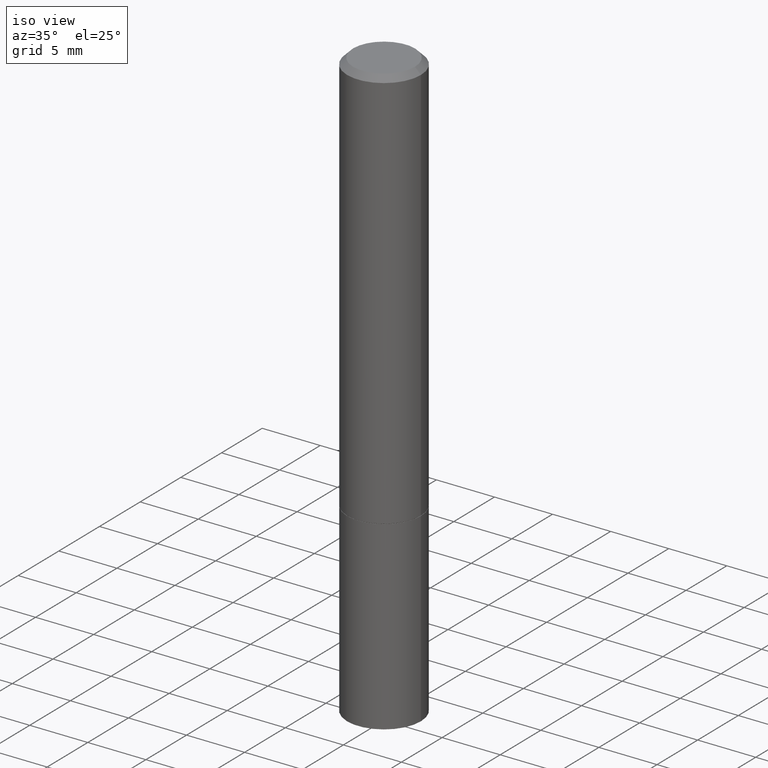
[diagram: clean part render]
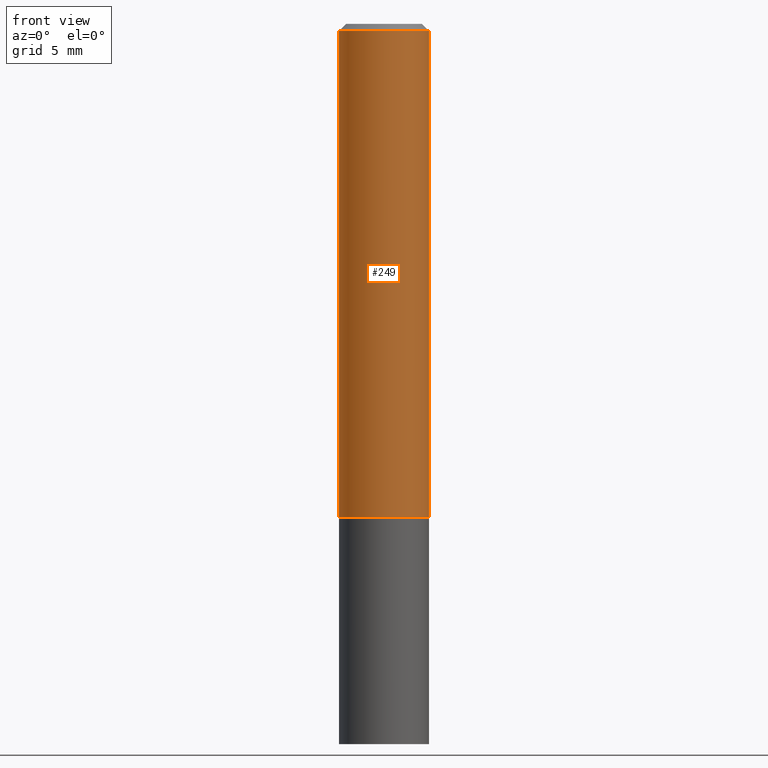
[diagram: tour spotlight — one face highlighted and labeled with its STEP entity id]
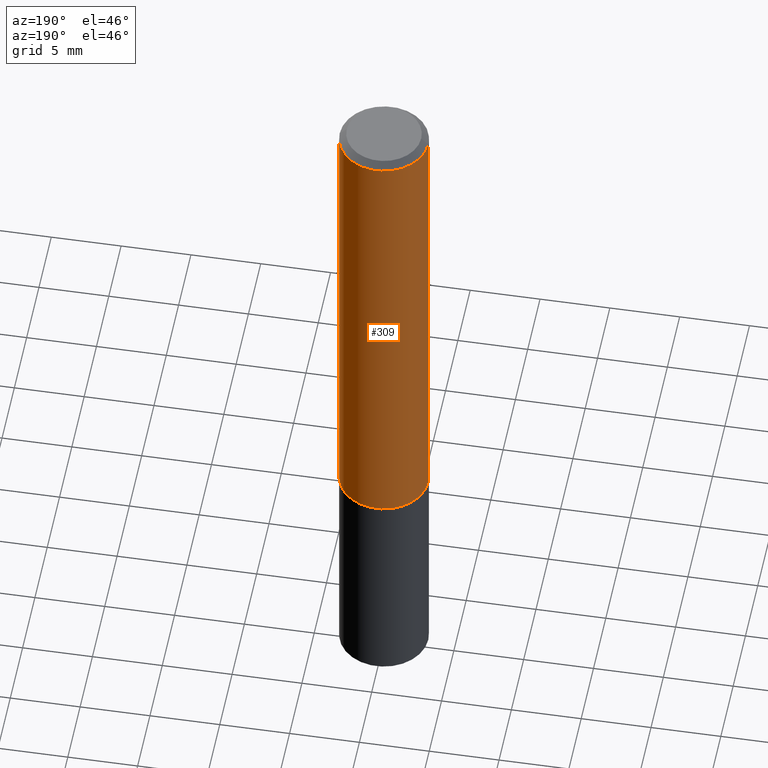
[diagram: tour spotlight — one face highlighted and labeled with its STEP entity id]
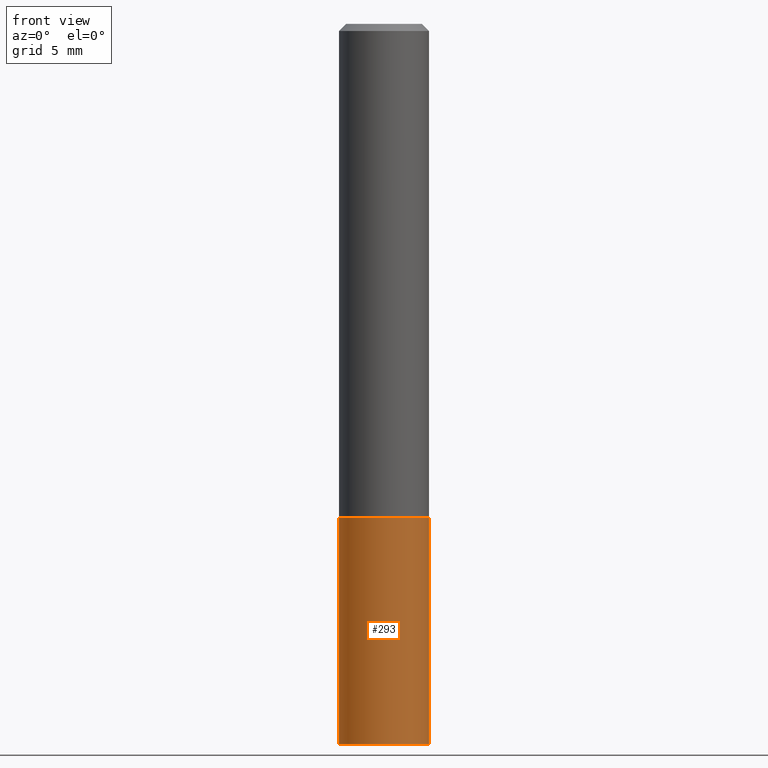
[diagram: tour spotlight — one face highlighted and labeled with its STEP entity id]
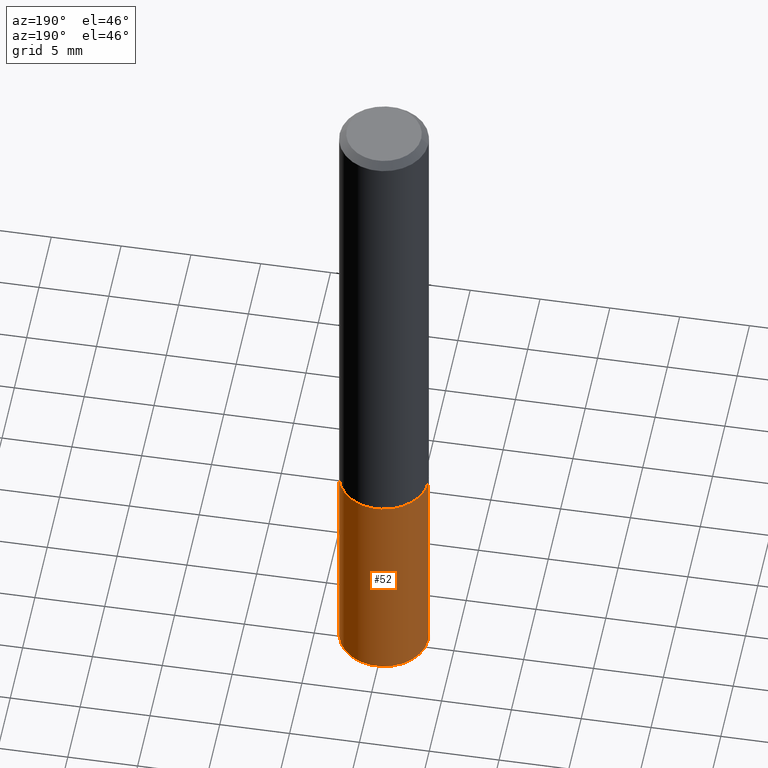
[diagram: tour spotlight — one face highlighted and labeled with its STEP entity id]
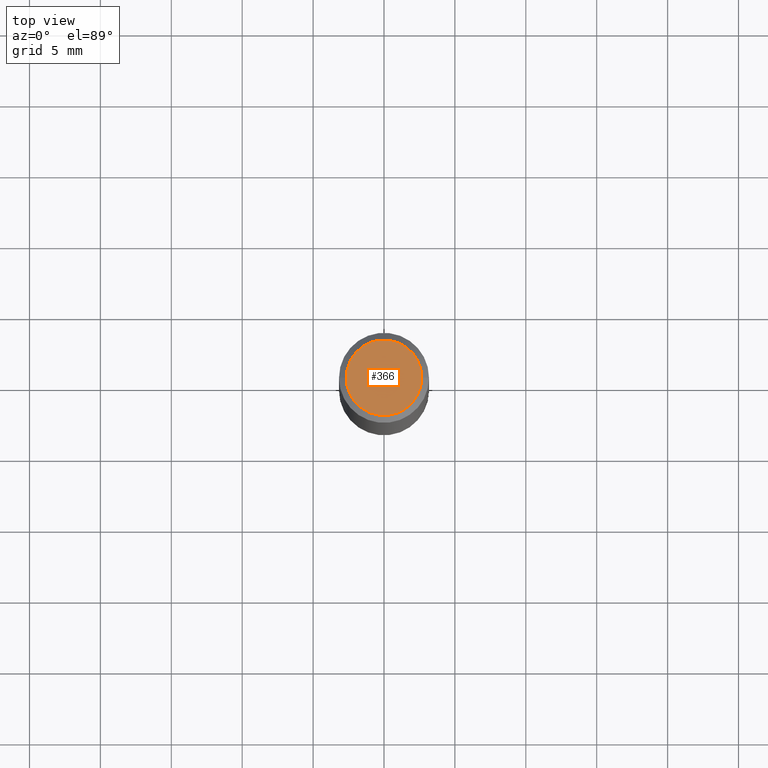
[diagram: tour spotlight — one face highlighted and labeled with its STEP entity id]
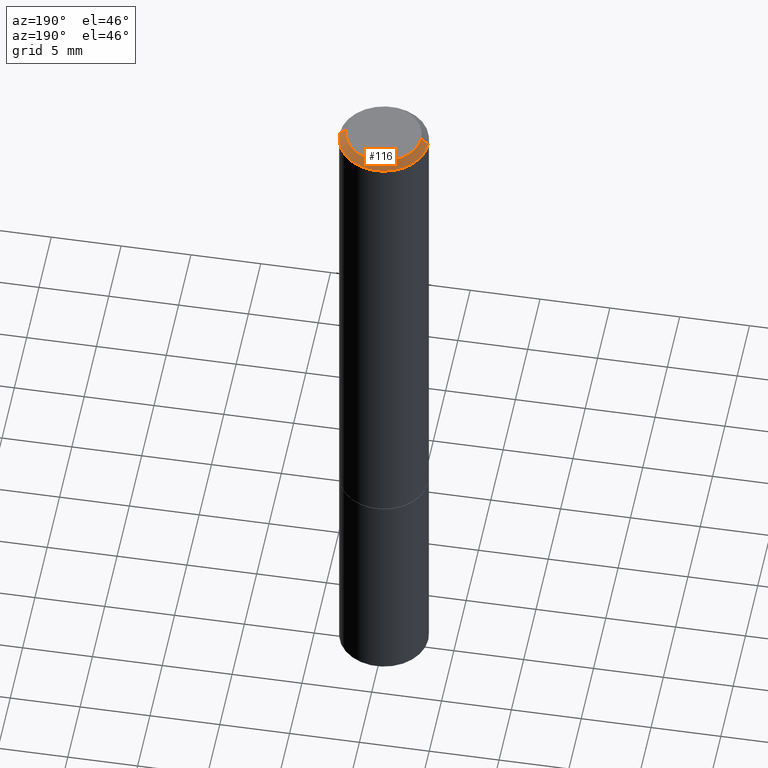
[diagram: tour spotlight — one face highlighted and labeled with its STEP entity id]
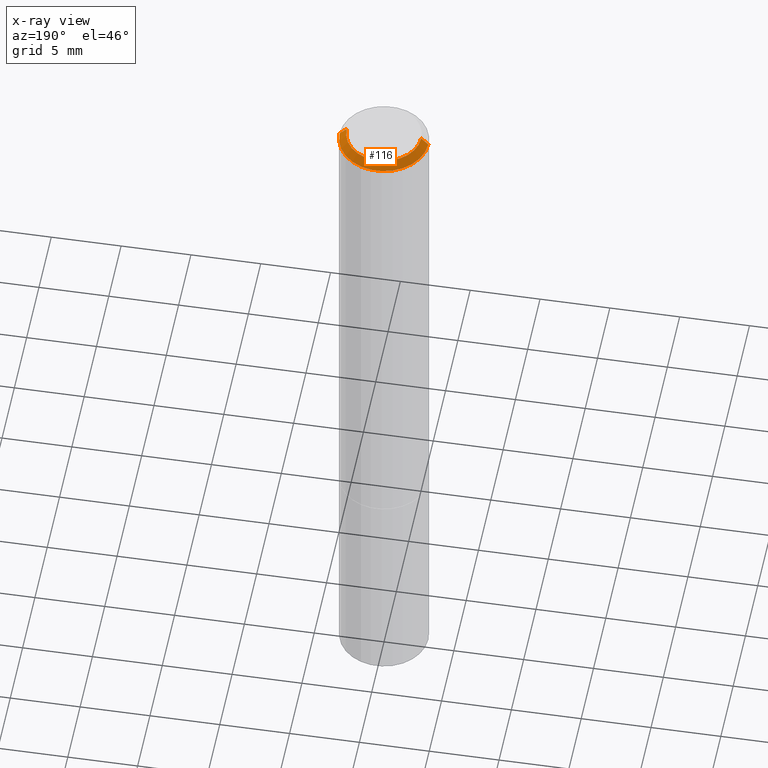
[diagram: x-ray of the same camera — body ghosted, this tour face saturated]
A machine part: a face-by-face anatomy tour. The part has 13 B-rep faces; the first image is the clean iso view, then the 6 largest visible faces are spotlighted one at a time (largest first), each with its STEP entity span.

Face 1 — front view, entity #249. In plain terms, the highlighted cylindrical surface (partial cylindrical patch) has radius 3.175 mm, axis along (-0, 0, 1).
Definition (entity closure, byte-faithful):
#35 = ORIENTED_EDGE ( 'NONE', *, *, #68, .F. ) ;
#36 = CARTESIAN_POINT ( 'NONE',  ( 0.000000000000000000, 0.000000000000000000, 0.000000000000000000 ) ) ;
#40 = EDGE_CURVE ( 'NONE', #117, #191, #370, .T. ) ;
#62 = CARTESIAN_POINT ( 'NONE',  ( 0.1250000000000000000, -5.656199768925892444E-15, -1.369999999999999885 ) ) ;
#68 = EDGE_CURVE ( 'NONE', #86, #117, #190, .T. ) ;
#73 = CIRCLE ( 'NONE', #167, 0.1250000000000000000 ) ;
#86 = VERTEX_POINT ( 'NONE', #295 ) ;
#117 = VERTEX_POINT ( 'NONE', #291 ) ;
#147 = CARTESIAN_POINT ( 'NONE',  ( -0.1249999999999999167, 8.881784197001246407E-16, -6.148668862818628023E-30 ) ) ;
#154 = EDGE_CURVE ( 'NONE', #328, #191, #234, .T. ) ;
#156 = CYLINDRICAL_SURFACE ( 'NONE', #162, 0.1249999999999999167 ) ;
#162 = AXIS2_PLACEMENT_3D ( 'NONE', #36, #272, #364 ) ;
#167 = AXIS2_PLACEMENT_3D ( 'NONE', #248, #365, #323 ) ;
#179 = CARTESIAN_POINT ( 'NONE',  ( 0.1249999999999998335, -9.273918764983031658E-16, -0.02000000000000002470 ) ) ;
#185 = AXIS2_PLACEMENT_3D ( 'NONE', #264, #288, #315 ) ;
#190 = LINE ( 'NONE', #147, #242 ) ;
#191 = VERTEX_POINT ( 'NONE', #179 ) ;
#206 = ORIENTED_EDGE ( 'NONE', *, *, #341, .T. ) ;
#232 = ORIENTED_EDGE ( 'NONE', *, *, #154, .T. ) ;
#234 = LINE ( 'NONE', #312, #336 ) ;
#236 = DIRECTION ( 'NONE',  ( -2.445468806185136877E-29, 3.491481338843145188E-15, 1.000000000000000000 ) ) ;
#242 = VECTOR ( 'NONE', #243, 39.37007874015748143 ) ;
#243 = DIRECTION ( 'NONE',  ( -2.445468806185136877E-29, 3.491481338843145188E-15, 1.000000000000000000 ) ) ;
#248 = CARTESIAN_POINT ( 'NONE',  ( 3.350292264473637048E-29, -4.783329434215109105E-15, -1.369999999999999885 ) ) ;
#249 = ADVANCED_FACE ( 'NONE', ( #314 ), #156, .T. ) ;
#264 = CARTESIAN_POINT ( 'NONE',  ( 4.890937612370279289E-31, -6.982962677686299005E-17, -0.02000000000000002470 ) ) ;
#272 = DIRECTION ( 'NONE',  ( -2.445468806185136597E-29, 3.491481338843145583E-15, 1.000000000000000000 ) ) ;
#288 = DIRECTION ( 'NONE',  ( -2.445468806185136597E-29, 3.491481338843145583E-15, 1.000000000000000000 ) ) ;
#291 = CARTESIAN_POINT ( 'NONE',  ( -0.1249999999999998335, 8.030407079339191532E-16, -0.02000000000000002470 ) ) ;
#295 = CARTESIAN_POINT ( 'NONE',  ( -0.1250000000000000000, -1.538401110795859194E-15, -1.369999999999999885 ) ) ;
#312 = CARTESIAN_POINT ( 'NONE',  ( 0.1249999999999999167, -8.728703347107827472E-16, 6.095220969744915537E-30 ) ) ;
#314 = FACE_OUTER_BOUND ( 'NONE', #363, .T. ) ;
#315 = DIRECTION ( 'NONE',  ( 1.000000000000000000, -6.982962677686266711E-15, 0.000000000000000000 ) ) ;
#323 = DIRECTION ( 'NONE',  ( 1.000000000000000000, -6.982962677686270655E-15, 0.000000000000000000 ) ) ;
#328 = VERTEX_POINT ( 'NONE', #62 ) ;
#336 = VECTOR ( 'NONE', #236, 39.37007874015748143 ) ;
#341 = EDGE_CURVE ( 'NONE', #86, #328, #73, .T. ) ;
#350 = ORIENTED_EDGE ( 'NONE', *, *, #40, .F. ) ;
#363 = EDGE_LOOP ( 'NONE', ( #35, #206, #232, #350 ) ) ;
#364 = DIRECTION ( 'NONE',  ( 1.000000000000000000, -6.982962677686266711E-15, 4.876176775795935793E-29 ) ) ;
#365 = DIRECTION ( 'NONE',  ( -2.445468806185136597E-29, 3.491481338843145583E-15, 1.000000000000000000 ) ) ;
#370 = CIRCLE ( 'NONE', #185, 0.1249999999999998335 ) ;

Face 2 — auxiliary view, entity #309. In plain terms, the highlighted cylindrical surface (partial cylindrical patch) has radius 3.175 mm, axis along (-0, 0, 1).
Definition (entity closure, byte-faithful):
#8 = CARTESIAN_POINT ( 'NONE',  ( 3.350292264473637048E-29, -4.783329434215109105E-15, -1.369999999999999885 ) ) ;
#11 = DIRECTION ( 'NONE',  ( 1.000000000000000000, -6.982962677686270655E-15, 0.000000000000000000 ) ) ;
#28 = DIRECTION ( 'NONE',  ( -2.445468806185136597E-29, 3.491481338843145583E-15, 1.000000000000000000 ) ) ;
#30 = ORIENTED_EDGE ( 'NONE', *, *, #269, .F. ) ;
#62 = CARTESIAN_POINT ( 'NONE',  ( 0.1250000000000000000, -5.656199768925892444E-15, -1.369999999999999885 ) ) ;
#68 = EDGE_CURVE ( 'NONE', #86, #117, #190, .T. ) ;
#82 = DIRECTION ( 'NONE',  ( -2.445468806185136597E-29, 3.491481338843145583E-15, 1.000000000000000000 ) ) ;
#86 = VERTEX_POINT ( 'NONE', #295 ) ;
#100 = CIRCLE ( 'NONE', #332, 0.1249999999999998335 ) ;
#117 = VERTEX_POINT ( 'NONE', #291 ) ;
#147 = CARTESIAN_POINT ( 'NONE',  ( -0.1249999999999999167, 8.881784197001246407E-16, -6.148668862818628023E-30 ) ) ;
#154 = EDGE_CURVE ( 'NONE', #328, #191, #234, .T. ) ;
#160 = DIRECTION ( 'NONE',  ( 1.000000000000000000, -6.982962677686266711E-15, 0.000000000000000000 ) ) ;
#179 = CARTESIAN_POINT ( 'NONE',  ( 0.1249999999999998335, -9.273918764983031658E-16, -0.02000000000000002470 ) ) ;
#183 = EDGE_CURVE ( 'NONE', #328, #86, #321, .T. ) ;
#190 = LINE ( 'NONE', #147, #242 ) ;
#191 = VERTEX_POINT ( 'NONE', #179 ) ;
#194 = ORIENTED_EDGE ( 'NONE', *, *, #68, .T. ) ;
#195 = CARTESIAN_POINT ( 'NONE',  ( 4.890937612370279289E-31, -6.982962677686299005E-17, -0.02000000000000002470 ) ) ;
#196 = CARTESIAN_POINT ( 'NONE',  ( 0.000000000000000000, 0.000000000000000000, 0.000000000000000000 ) ) ;
#220 = DIRECTION ( 'NONE',  ( 1.000000000000000000, -6.982962677686266711E-15, 4.876176775795935793E-29 ) ) ;
#234 = LINE ( 'NONE', #312, #336 ) ;
#236 = DIRECTION ( 'NONE',  ( -2.445468806185136877E-29, 3.491481338843145188E-15, 1.000000000000000000 ) ) ;
#242 = VECTOR ( 'NONE', #243, 39.37007874015748143 ) ;
#243 = DIRECTION ( 'NONE',  ( -2.445468806185136877E-29, 3.491481338843145188E-15, 1.000000000000000000 ) ) ;
#245 = FACE_OUTER_BOUND ( 'NONE', #331, .T. ) ;
#269 = EDGE_CURVE ( 'NONE', #191, #117, #100, .T. ) ;
#273 = ORIENTED_EDGE ( 'NONE', *, *, #183, .T. ) ;
#274 = ORIENTED_EDGE ( 'NONE', *, *, #154, .F. ) ;
#291 = CARTESIAN_POINT ( 'NONE',  ( -0.1249999999999998335, 8.030407079339191532E-16, -0.02000000000000002470 ) ) ;
#295 = CARTESIAN_POINT ( 'NONE',  ( -0.1250000000000000000, -1.538401110795859194E-15, -1.369999999999999885 ) ) ;
#299 = DIRECTION ( 'NONE',  ( -2.445468806185136597E-29, 3.491481338843145583E-15, 1.000000000000000000 ) ) ;
#309 = ADVANCED_FACE ( 'NONE', ( #245 ), #330, .T. ) ;
#312 = CARTESIAN_POINT ( 'NONE',  ( 0.1249999999999999167, -8.728703347107827472E-16, 6.095220969744915537E-30 ) ) ;
#318 = AXIS2_PLACEMENT_3D ( 'NONE', #196, #28, #220 ) ;
#321 = CIRCLE ( 'NONE', #384, 0.1250000000000000000 ) ;
#328 = VERTEX_POINT ( 'NONE', #62 ) ;
#330 = CYLINDRICAL_SURFACE ( 'NONE', #318, 0.1249999999999999167 ) ;
#331 = EDGE_LOOP ( 'NONE', ( #273, #194, #30, #274 ) ) ;
#332 = AXIS2_PLACEMENT_3D ( 'NONE', #195, #299, #160 ) ;
#336 = VECTOR ( 'NONE', #236, 39.37007874015748143 ) ;
#384 = AXIS2_PLACEMENT_3D ( 'NONE', #8, #82, #11 ) ;

Face 3 — front view, entity #293. In plain terms, the highlighted cylindrical surface (partial cylindrical patch) has radius 3.175 mm, axis along (-0, 0, 1).
Definition (entity closure, byte-faithful):
#13 = VERTEX_POINT ( 'NONE', #61 ) ;
#19 = CARTESIAN_POINT ( 'NONE',  ( 0.1250000000000006661, -7.840524927407736555E-15, -2.000000000000000000 ) ) ;
#21 = CIRCLE ( 'NONE', #283, 0.1250000000000000000 ) ;
#33 = DIRECTION ( 'NONE',  ( 1.000000000000000000, -6.982962677686270655E-15, 0.000000000000000000 ) ) ;
#59 = CARTESIAN_POINT ( 'NONE',  ( 3.352737733279822090E-29, -4.786820915553952901E-15, -1.370999999999999996 ) ) ;
#61 = CARTESIAN_POINT ( 'NONE',  ( -0.1250000000000000000, -4.996713376919996012E-15, -1.370999999999999996 ) ) ;
#71 = CARTESIAN_POINT ( 'NONE',  ( -0.1250000000000000000, 8.881784197001252323E-16, -6.148668862818632227E-30 ) ) ;
#96 = DIRECTION ( 'NONE',  ( 1.000000000000000000, -6.982962677686266711E-15, 4.876176775795935793E-29 ) ) ;
#97 = ORIENTED_EDGE ( 'NONE', *, *, #260, .F. ) ;
#101 = EDGE_CURVE ( 'NONE', #145, #126, #377, .T. ) ;
#110 = CARTESIAN_POINT ( 'NONE',  ( 4.890937612370273194E-29, -6.982962677686291165E-15, -2.000000000000000000 ) ) ;
#113 = DIRECTION ( 'NONE',  ( -2.445468806185136597E-29, 3.491481338843145583E-15, 1.000000000000000000 ) ) ;
#119 = DIRECTION ( 'NONE',  ( -2.445468806185136877E-29, 3.491481338843145188E-15, 1.000000000000000000 ) ) ;
#124 = DIRECTION ( 'NONE',  ( -2.445468806185136597E-29, 3.491481338843145583E-15, 1.000000000000000000 ) ) ;
#126 = VERTEX_POINT ( 'NONE', #266 ) ;
#145 = VERTEX_POINT ( 'NONE', #19 ) ;
#174 = CIRCLE ( 'NONE', #376, 0.1250000000000000000 ) ;
#180 = EDGE_LOOP ( 'NONE', ( #97, #265, #387, #355 ) ) ;
#197 = AXIS2_PLACEMENT_3D ( 'NONE', #275, #124, #96 ) ;
#214 = DIRECTION ( 'NONE',  ( -2.445468806185136877E-29, 3.491481338843145188E-15, 1.000000000000000000 ) ) ;
#217 = CARTESIAN_POINT ( 'NONE',  ( 0.1250000000000000000, -8.728703347107833388E-16, 6.095220969744919741E-30 ) ) ;
#260 = EDGE_CURVE ( 'NONE', #386, #13, #334, .T. ) ;
#265 = ORIENTED_EDGE ( 'NONE', *, *, #360, .T. ) ;
#266 = CARTESIAN_POINT ( 'NONE',  ( 0.1250000000000000000, -5.659691250264735451E-15, -1.370999999999999996 ) ) ;
#268 = FACE_OUTER_BOUND ( 'NONE', #180, .T. ) ;
#275 = CARTESIAN_POINT ( 'NONE',  ( 0.000000000000000000, 0.000000000000000000, 0.000000000000000000 ) ) ;
#283 = AXIS2_PLACEMENT_3D ( 'NONE', #59, #297, #385 ) ;
#290 = VECTOR ( 'NONE', #214, 39.37007874015748143 ) ;
#293 = ADVANCED_FACE ( 'NONE', ( #268 ), #294, .T. ) ;
#294 = CYLINDRICAL_SURFACE ( 'NONE', #197, 0.1250000000000000000 ) ;
#297 = DIRECTION ( 'NONE',  ( -2.445468806185136597E-29, 3.491481338843145583E-15, 1.000000000000000000 ) ) ;
#306 = VECTOR ( 'NONE', #119, 39.37007874015748143 ) ;
#334 = LINE ( 'NONE', #71, #306 ) ;
#337 = CARTESIAN_POINT ( 'NONE',  ( -0.1250000000000006661, -6.110092342975502304E-15, -2.000000000000000000 ) ) ;
#345 = EDGE_CURVE ( 'NONE', #13, #126, #21, .T. ) ;
#355 = ORIENTED_EDGE ( 'NONE', *, *, #345, .F. ) ;
#360 = EDGE_CURVE ( 'NONE', #386, #145, #174, .T. ) ;
#376 = AXIS2_PLACEMENT_3D ( 'NONE', #110, #113, #33 ) ;
#377 = LINE ( 'NONE', #217, #290 ) ;
#385 = DIRECTION ( 'NONE',  ( 1.000000000000000000, -6.982962677686262766E-15, 0.000000000000000000 ) ) ;
#386 = VERTEX_POINT ( 'NONE', #337 ) ;
#387 = ORIENTED_EDGE ( 'NONE', *, *, #101, .T. ) ;

Face 4 — auxiliary view, entity #52. In plain terms, the highlighted cylindrical surface (partial cylindrical patch) has radius 3.175 mm, axis along (-0, 0, 1).
Definition (entity closure, byte-faithful):
#13 = VERTEX_POINT ( 'NONE', #61 ) ;
#19 = CARTESIAN_POINT ( 'NONE',  ( 0.1250000000000006661, -7.840524927407736555E-15, -2.000000000000000000 ) ) ;
#22 = FACE_OUTER_BOUND ( 'NONE', #91, .T. ) ;
#31 = CARTESIAN_POINT ( 'NONE',  ( 4.890937612370273194E-29, -6.982962677686291165E-15, -2.000000000000000000 ) ) ;
#45 = ORIENTED_EDGE ( 'NONE', *, *, #326, .T. ) ;
#48 = ORIENTED_EDGE ( 'NONE', *, *, #260, .T. ) ;
#52 = ADVANCED_FACE ( 'NONE', ( #22 ), #121, .T. ) ;
#61 = CARTESIAN_POINT ( 'NONE',  ( -0.1250000000000000000, -4.996713376919996012E-15, -1.370999999999999996 ) ) ;
#71 = CARTESIAN_POINT ( 'NONE',  ( -0.1250000000000000000, 8.881784197001252323E-16, -6.148668862818632227E-30 ) ) ;
#80 = ORIENTED_EDGE ( 'NONE', *, *, #92, .F. ) ;
#90 = CARTESIAN_POINT ( 'NONE',  ( 3.352737733279822090E-29, -4.786820915553952901E-15, -1.370999999999999996 ) ) ;
#91 = EDGE_LOOP ( 'NONE', ( #45, #48, #80, #378 ) ) ;
#92 = EDGE_CURVE ( 'NONE', #126, #13, #140, .T. ) ;
#94 = DIRECTION ( 'NONE',  ( 1.000000000000000000, -6.982962677686266711E-15, 4.876176775795935793E-29 ) ) ;
#101 = EDGE_CURVE ( 'NONE', #145, #126, #377, .T. ) ;
#112 = AXIS2_PLACEMENT_3D ( 'NONE', #31, #325, #127 ) ;
#119 = DIRECTION ( 'NONE',  ( -2.445468806185136877E-29, 3.491481338843145188E-15, 1.000000000000000000 ) ) ;
#121 = CYLINDRICAL_SURFACE ( 'NONE', #247, 0.1250000000000000000 ) ;
#126 = VERTEX_POINT ( 'NONE', #266 ) ;
#127 = DIRECTION ( 'NONE',  ( 1.000000000000000000, -6.982962677686270655E-15, 0.000000000000000000 ) ) ;
#140 = CIRCLE ( 'NONE', #175, 0.1250000000000000000 ) ;
#144 = DIRECTION ( 'NONE',  ( 1.000000000000000000, -6.982962677686262766E-15, 0.000000000000000000 ) ) ;
#145 = VERTEX_POINT ( 'NONE', #19 ) ;
#155 = CIRCLE ( 'NONE', #112, 0.1250000000000000000 ) ;
#175 = AXIS2_PLACEMENT_3D ( 'NONE', #90, #263, #144 ) ;
#214 = DIRECTION ( 'NONE',  ( -2.445468806185136877E-29, 3.491481338843145188E-15, 1.000000000000000000 ) ) ;
#217 = CARTESIAN_POINT ( 'NONE',  ( 0.1250000000000000000, -8.728703347107833388E-16, 6.095220969744919741E-30 ) ) ;
#238 = CARTESIAN_POINT ( 'NONE',  ( 0.000000000000000000, 0.000000000000000000, 0.000000000000000000 ) ) ;
#247 = AXIS2_PLACEMENT_3D ( 'NONE', #238, #327, #94 ) ;
#260 = EDGE_CURVE ( 'NONE', #386, #13, #334, .T. ) ;
#263 = DIRECTION ( 'NONE',  ( -2.445468806185136597E-29, 3.491481338843145583E-15, 1.000000000000000000 ) ) ;
#266 = CARTESIAN_POINT ( 'NONE',  ( 0.1250000000000000000, -5.659691250264735451E-15, -1.370999999999999996 ) ) ;
#290 = VECTOR ( 'NONE', #214, 39.37007874015748143 ) ;
#306 = VECTOR ( 'NONE', #119, 39.37007874015748143 ) ;
#325 = DIRECTION ( 'NONE',  ( -2.445468806185136597E-29, 3.491481338843145583E-15, 1.000000000000000000 ) ) ;
#326 = EDGE_CURVE ( 'NONE', #145, #386, #155, .T. ) ;
#327 = DIRECTION ( 'NONE',  ( -2.445468806185136597E-29, 3.491481338843145583E-15, 1.000000000000000000 ) ) ;
#334 = LINE ( 'NONE', #71, #306 ) ;
#337 = CARTESIAN_POINT ( 'NONE',  ( -0.1250000000000006661, -6.110092342975502304E-15, -2.000000000000000000 ) ) ;
#377 = LINE ( 'NONE', #217, #290 ) ;
#378 = ORIENTED_EDGE ( 'NONE', *, *, #101, .F. ) ;
#386 = VERTEX_POINT ( 'NONE', #337 ) ;

Face 5 — top view, entity #366. In plain terms, the highlighted planar face has unit normal (0, -0, -1).
Definition (entity closure, byte-faithful):
#7 = DIRECTION ( 'NONE',  ( 2.438088387897960049E-29, -3.491481338843145188E-15, -1.000000000000000000 ) ) ;
#14 = CIRCLE ( 'NONE', #130, 0.1049999999999998296 ) ;
#23 = ORIENTED_EDGE ( 'NONE', *, *, #322, .T. ) ;
#41 = FACE_OUTER_BOUND ( 'NONE', #239, .T. ) ;
#44 = DIRECTION ( 'NONE',  ( 1.000000000000000000, -6.982962677686266711E-15, 4.876176775795935793E-29 ) ) ;
#108 = DIRECTION ( 'NONE',  ( -2.445468806185136597E-29, 3.491481338843145583E-15, 1.000000000000000000 ) ) ;
#111 = CARTESIAN_POINT ( 'NONE',  ( 0.000000000000000000, 0.000000000000000000, 0.000000000000000000 ) ) ;
#130 = AXIS2_PLACEMENT_3D ( 'NONE', #192, #381, #388 ) ;
#132 = PLANE ( 'NONE',  #352 ) ;
#142 = CARTESIAN_POINT ( 'NONE',  ( 0.1049999999999998296, -8.238720831321564811E-16, 5.444276250344142358E-30 ) ) ;
#149 = EDGE_CURVE ( 'NONE', #178, #173, #390, .T. ) ;
#171 = ORIENTED_EDGE ( 'NONE', *, *, #149, .T. ) ;
#173 = VERTEX_POINT ( 'NONE', #142 ) ;
#178 = VERTEX_POINT ( 'NONE', #230 ) ;
#192 = CARTESIAN_POINT ( 'NONE',  ( 0.000000000000000000, 0.000000000000000000, 0.000000000000000000 ) ) ;
#200 = DIRECTION ( 'NONE',  ( -1.000000000000000000, 6.982962677686265922E-15, -4.876176775795935793E-29 ) ) ;
#225 = CARTESIAN_POINT ( 'NONE',  ( 7.332110811570568410E-16, 0.1049999999999998296, -3.666055405785297517E-16 ) ) ;
#229 = AXIS2_PLACEMENT_3D ( 'NONE', #111, #108, #44 ) ;
#230 = CARTESIAN_POINT ( 'NONE',  ( -0.1049999999999998296, 7.681258945454879971E-16, -5.249639473182158869E-30 ) ) ;
#239 = EDGE_LOOP ( 'NONE', ( #171, #23 ) ) ;
#322 = EDGE_CURVE ( 'NONE', #173, #178, #14, .T. ) ;
#352 = AXIS2_PLACEMENT_3D ( 'NONE', #225, #7, #200 ) ;
#366 = ADVANCED_FACE ( 'NONE', ( #41 ), #132, .F. ) ;
#381 = DIRECTION ( 'NONE',  ( -2.445468806185136597E-29, 3.491481338843145583E-15, 1.000000000000000000 ) ) ;
#388 = DIRECTION ( 'NONE',  ( 1.000000000000000000, -6.982962677686266711E-15, 4.876176775795935793E-29 ) ) ;
#390 = CIRCLE ( 'NONE', #229, 0.1049999999999998296 ) ;

Face 6 — auxiliary view, entity #116. An x-ray twin of the same camera follows (body ghosted, this face saturated) — the face is partly hidden behind the body. In plain terms, the highlighted conical surface has half-angle 45 deg.
Definition (entity closure, byte-faithful):
#14 = CIRCLE ( 'NONE', #130, 0.1049999999999998296 ) ;
#25 = EDGE_CURVE ( 'NONE', #173, #191, #95, .T. ) ;
#27 = ORIENTED_EDGE ( 'NONE', *, *, #322, .F. ) ;
#32 = DIRECTION ( 'NONE',  ( 0.7071067811865469066, -7.319954787623254468E-15, -0.7071067811865481278 ) ) ;
#39 = AXIS2_PLACEMENT_3D ( 'NONE', #319, #57, #186 ) ;
#57 = DIRECTION ( 'NONE',  ( 2.445468806185136597E-29, -3.491481338843145583E-15, -1.000000000000000000 ) ) ;
#65 = DIRECTION ( 'NONE',  ( -0.7071067811865469066, 2.468850131082250355E-15, -0.7071067811865481278 ) ) ;
#93 = LINE ( 'NONE', #301, #317 ) ;
#95 = LINE ( 'NONE', #218, #277 ) ;
#100 = CIRCLE ( 'NONE', #332, 0.1249999999999998335 ) ;
#116 = ADVANCED_FACE ( 'NONE', ( #210 ), #120, .T. ) ;
#117 = VERTEX_POINT ( 'NONE', #291 ) ;
#120 = CONICAL_SURFACE ( 'NONE', #39, 0.1249999999999998335, 0.7853981633974473908 ) ;
#130 = AXIS2_PLACEMENT_3D ( 'NONE', #192, #381, #388 ) ;
#142 = CARTESIAN_POINT ( 'NONE',  ( 0.1049999999999998296, -8.238720831321564811E-16, 5.444276250344142358E-30 ) ) ;
#160 = DIRECTION ( 'NONE',  ( 1.000000000000000000, -6.982962677686266711E-15, 0.000000000000000000 ) ) ;
#173 = VERTEX_POINT ( 'NONE', #142 ) ;
#178 = VERTEX_POINT ( 'NONE', #230 ) ;
#179 = CARTESIAN_POINT ( 'NONE',  ( 0.1249999999999998335, -9.273918764983031658E-16, -0.02000000000000002470 ) ) ;
#186 = DIRECTION ( 'NONE',  ( -1.000000000000000000, 6.982962677686266711E-15, 0.000000000000000000 ) ) ;
#191 = VERTEX_POINT ( 'NONE', #179 ) ;
#192 = CARTESIAN_POINT ( 'NONE',  ( 0.000000000000000000, 0.000000000000000000, 0.000000000000000000 ) ) ;
#195 = CARTESIAN_POINT ( 'NONE',  ( 4.890937612370279289E-31, -6.982962677686299005E-17, -0.02000000000000002470 ) ) ;
#210 = FACE_OUTER_BOUND ( 'NONE', #211, .T. ) ;
#211 = EDGE_LOOP ( 'NONE', ( #27, #258, #353, #298 ) ) ;
#218 = CARTESIAN_POINT ( 'NONE',  ( 0.1249999999999998335, -9.273918764983031658E-16, -0.02000000000000002470 ) ) ;
#230 = CARTESIAN_POINT ( 'NONE',  ( -0.1049999999999998296, 7.681258945454879971E-16, -5.249639473182158869E-30 ) ) ;
#255 = EDGE_CURVE ( 'NONE', #178, #117, #93, .T. ) ;
#258 = ORIENTED_EDGE ( 'NONE', *, *, #25, .T. ) ;
#269 = EDGE_CURVE ( 'NONE', #191, #117, #100, .T. ) ;
#277 = VECTOR ( 'NONE', #32, 39.37007874015748143 ) ;
#291 = CARTESIAN_POINT ( 'NONE',  ( -0.1249999999999998335, 8.030407079339191532E-16, -0.02000000000000002470 ) ) ;
#298 = ORIENTED_EDGE ( 'NONE', *, *, #255, .F. ) ;
#299 = DIRECTION ( 'NONE',  ( -2.445468806185136597E-29, 3.491481338843145583E-15, 1.000000000000000000 ) ) ;
#301 = CARTESIAN_POINT ( 'NONE',  ( -0.1249999999999998335, 8.030407079339191532E-16, -0.02000000000000002470 ) ) ;
#317 = VECTOR ( 'NONE', #65, 39.37007874015748143 ) ;
#319 = CARTESIAN_POINT ( 'NONE',  ( 4.890937612370279289E-31, -6.982962677686299005E-17, -0.02000000000000002470 ) ) ;
#322 = EDGE_CURVE ( 'NONE', #173, #178, #14, .T. ) ;
#332 = AXIS2_PLACEMENT_3D ( 'NONE', #195, #299, #160 ) ;
#353 = ORIENTED_EDGE ( 'NONE', *, *, #269, .T. ) ;
#381 = DIRECTION ( 'NONE',  ( -2.445468806185136597E-29, 3.491481338843145583E-15, 1.000000000000000000 ) ) ;
#388 = DIRECTION ( 'NONE',  ( 1.000000000000000000, -6.982962677686266711E-15, 4.876176775795935793E-29 ) ) ;